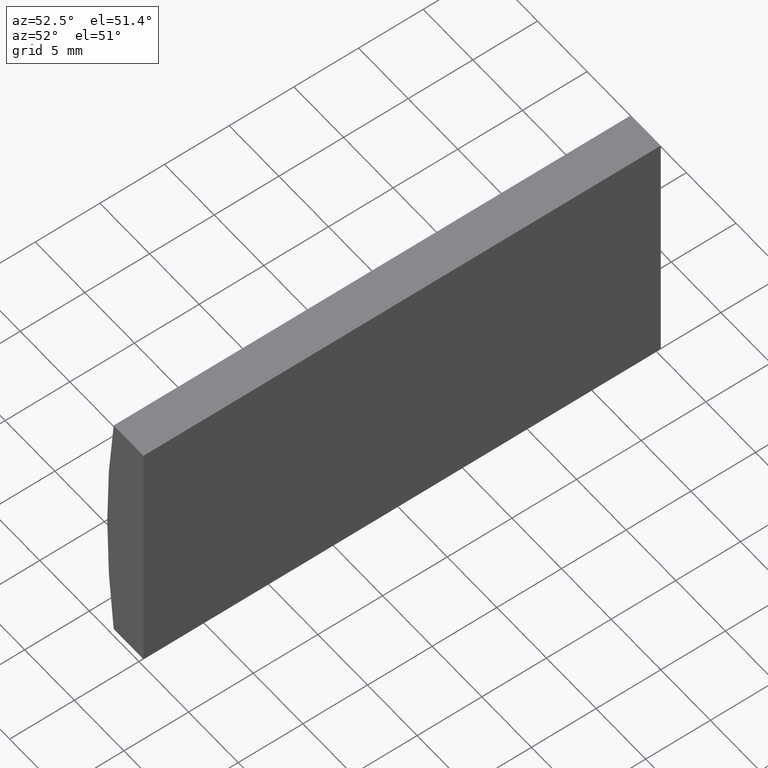
[diagram: clean part render]
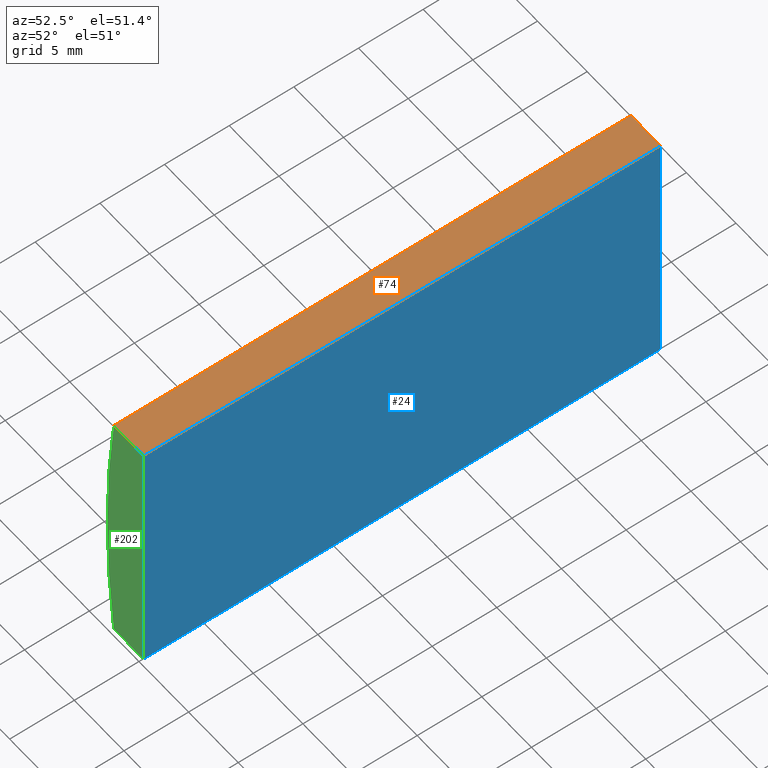
[diagram: same view with three faces highlighted in distinct colors, each labeled with its STEP entity id]
A machine part, auxiliary view with three faces highlighted in distinct colors.
Their STEP definitions:

[orange] entity #74 — the highlighted planar face has unit normal (0, 0, -1).
#15 = EDGE_CURVE ( 'NONE', #183, #96, #198, .T. ) ;
#18 = VERTEX_POINT ( 'NONE', #154 ) ;
#19 = PLANE ( 'NONE',  #188 ) ;
#21 = LINE ( 'NONE', #152, #136 ) ;
#23 = ORIENTED_EDGE ( 'NONE', *, *, #121, .F. ) ;
#46 = ORIENTED_EDGE ( 'NONE', *, *, #101, .T. ) ;
#53 = CARTESIAN_POINT ( 'NONE',  ( -69.54479566514874000, 0.0000000000000000000, 10.00000000000000000 ) ) ;
#65 = VECTOR ( 'NONE', #68, 1000.000000000000000 ) ;
#68 = DIRECTION ( 'NONE',  ( -0.0000000000000000000, -1.000000000000000000, -0.0000000000000000000 ) ) ;
#71 = CARTESIAN_POINT ( 'NONE',  ( -72.54734763840902200, 40.00000000000000000, 10.00000000000000000 ) ) ;
#74 = ADVANCED_FACE ( 'NONE', ( #82 ), #19, .F. ) ;
#78 = DIRECTION ( 'NONE',  ( 0.0000000000000000000, 0.0000000000000000000, -1.000000000000000000 ) ) ;
#82 = FACE_OUTER_BOUND ( 'NONE', #85, .T. ) ;
#83 = VERTEX_POINT ( 'NONE', #189 ) ;
#85 = EDGE_LOOP ( 'NONE', ( #127, #119, #23, #46 ) ) ;
#87 = EDGE_CURVE ( 'NONE', #18, #96, #193, .T. ) ;
#96 = VERTEX_POINT ( 'NONE', #53 ) ;
#97 = CARTESIAN_POINT ( 'NONE',  ( -69.54479566514874000, 40.00000000000000000, 10.00000000000000000 ) ) ;
#101 = EDGE_CURVE ( 'NONE', #83, #18, #114, .T. ) ;
#108 = DIRECTION ( 'NONE',  ( -0.0000000000000000000, -1.000000000000000000, -0.0000000000000000000 ) ) ;
#111 = DIRECTION ( 'NONE',  ( 1.000000000000000000, 0.0000000000000000000, 0.0000000000000000000 ) ) ;
#114 = LINE ( 'NONE', #179, #65 ) ;
#119 = ORIENTED_EDGE ( 'NONE', *, *, #15, .F. ) ;
#120 = CARTESIAN_POINT ( 'NONE',  ( -72.54734763840902200, 0.0000000000000000000, 10.00000000000000000 ) ) ;
#121 = EDGE_CURVE ( 'NONE', #83, #183, #21, .T. ) ;
#126 = VECTOR ( 'NONE', #111, 1000.000000000000000 ) ;
#127 = ORIENTED_EDGE ( 'NONE', *, *, #87, .T. ) ;
#133 = DIRECTION ( 'NONE',  ( 1.000000000000000000, 0.0000000000000000000, 0.0000000000000000000 ) ) ;
#136 = VECTOR ( 'NONE', #133, 1000.000000000000000 ) ;
#152 = CARTESIAN_POINT ( 'NONE',  ( -72.54734763840902200, 40.00000000000000000, 10.00000000000000000 ) ) ;
#154 = CARTESIAN_POINT ( 'NONE',  ( -72.54734763840902200, 0.0000000000000000000, 10.00000000000000000 ) ) ;
#179 = CARTESIAN_POINT ( 'NONE',  ( -72.54734763840902200, 40.00000000000000000, 10.00000000000000000 ) ) ;
#180 = DIRECTION ( 'NONE',  ( -1.000000000000000000, 0.0000000000000000000, -0.0000000000000000000 ) ) ;
#183 = VERTEX_POINT ( 'NONE', #97 ) ;
#188 = AXIS2_PLACEMENT_3D ( 'NONE', #71, #78, #180 ) ;
#189 = CARTESIAN_POINT ( 'NONE',  ( -72.54734763840902200, 40.00000000000000000, 10.00000000000000000 ) ) ;
#193 = LINE ( 'NONE', #120, #126 ) ;
#196 = VECTOR ( 'NONE', #108, 1000.000000000000000 ) ;
#198 = LINE ( 'NONE', #201, #196 ) ;
#201 = CARTESIAN_POINT ( 'NONE',  ( -69.54479566514874000, 40.00000000000000000, 10.00000000000000000 ) ) ;

[blue] entity #24 — the highlighted planar face has unit normal (-1, 0, 0).
#1 = ORIENTED_EDGE ( 'NONE', *, *, #166, .F. ) ;
#7 = DIRECTION ( 'NONE',  ( -0.0000000000000000000, -1.000000000000000000, -0.0000000000000000000 ) ) ;
#10 = VERTEX_POINT ( 'NONE', #33 ) ;
#11 = LINE ( 'NONE', #112, #54 ) ;
#15 = EDGE_CURVE ( 'NONE', #183, #96, #198, .T. ) ;
#16 = LINE ( 'NONE', #148, #177 ) ;
#24 = ADVANCED_FACE ( 'NONE', ( #168 ), #95, .F. ) ;
#32 = ORIENTED_EDGE ( 'NONE', *, *, #113, .F. ) ;
#33 = CARTESIAN_POINT ( 'NONE',  ( -69.54479566514874000, 0.0000000000000000000, -9.999999999999982200 ) ) ;
#40 = EDGE_CURVE ( 'NONE', #96, #10, #11, .T. ) ;
#45 = LINE ( 'NONE', #173, #192 ) ;
#53 = CARTESIAN_POINT ( 'NONE',  ( -69.54479566514874000, 0.0000000000000000000, 10.00000000000000000 ) ) ;
#54 = VECTOR ( 'NONE', #122, 1000.000000000000000 ) ;
#66 = ORIENTED_EDGE ( 'NONE', *, *, #40, .T. ) ;
#73 = VERTEX_POINT ( 'NONE', #75 ) ;
#75 = CARTESIAN_POINT ( 'NONE',  ( -69.54479566514874000, 40.00000000000000000, -9.999999999999982200 ) ) ;
#95 = PLANE ( 'NONE',  #172 ) ;
#96 = VERTEX_POINT ( 'NONE', #53 ) ;
#97 = CARTESIAN_POINT ( 'NONE',  ( -69.54479566514874000, 40.00000000000000000, 10.00000000000000000 ) ) ;
#108 = DIRECTION ( 'NONE',  ( -0.0000000000000000000, -1.000000000000000000, -0.0000000000000000000 ) ) ;
#112 = CARTESIAN_POINT ( 'NONE',  ( -69.54479566514874000, 0.0000000000000000000, -9.999999999999982200 ) ) ;
#113 = EDGE_CURVE ( 'NONE', #183, #73, #45, .T. ) ;
#122 = DIRECTION ( 'NONE',  ( -0.0000000000000000000, -0.0000000000000000000, -1.000000000000000000 ) ) ;
#128 = DIRECTION ( 'NONE',  ( -1.000000000000000000, 0.0000000000000000000, 0.0000000000000000000 ) ) ;
#140 = DIRECTION ( 'NONE',  ( -0.0000000000000000000, -0.0000000000000000000, -1.000000000000000000 ) ) ;
#142 = CARTESIAN_POINT ( 'NONE',  ( -69.54479566514874000, 40.00000000000000000, -9.999999999999982200 ) ) ;
#143 = EDGE_LOOP ( 'NONE', ( #66, #1, #32, #171 ) ) ;
#148 = CARTESIAN_POINT ( 'NONE',  ( -69.54479566514874000, 40.00000000000000000, -9.999999999999982200 ) ) ;
#161 = DIRECTION ( 'NONE',  ( 0.0000000000000000000, 0.0000000000000000000, 1.000000000000000000 ) ) ;
#166 = EDGE_CURVE ( 'NONE', #73, #10, #16, .T. ) ;
#168 = FACE_OUTER_BOUND ( 'NONE', #143, .T. ) ;
#171 = ORIENTED_EDGE ( 'NONE', *, *, #15, .T. ) ;
#172 = AXIS2_PLACEMENT_3D ( 'NONE', #142, #128, #161 ) ;
#173 = CARTESIAN_POINT ( 'NONE',  ( -69.54479566514874000, 40.00000000000000000, -9.999999999999982200 ) ) ;
#177 = VECTOR ( 'NONE', #7, 1000.000000000000000 ) ;
#183 = VERTEX_POINT ( 'NONE', #97 ) ;
#192 = VECTOR ( 'NONE', #140, 1000.000000000000000 ) ;
#196 = VECTOR ( 'NONE', #108, 1000.000000000000000 ) ;
#198 = LINE ( 'NONE', #201, #196 ) ;
#201 = CARTESIAN_POINT ( 'NONE',  ( -69.54479566514874000, 40.00000000000000000, 10.00000000000000000 ) ) ;

[green] entity #202 — the highlighted planar face has unit normal (0, 1, 0).
#3 = CARTESIAN_POINT ( 'NONE',  ( 4.355204334851265500, 0.0000000000000000000, 4.286263797015675000E-017 ) ) ;
#5 = ORIENTED_EDGE ( 'NONE', *, *, #200, .F. ) ;
#10 = VERTEX_POINT ( 'NONE', #33 ) ;
#11 = LINE ( 'NONE', #112, #54 ) ;
#18 = VERTEX_POINT ( 'NONE', #154 ) ;
#26 = FACE_OUTER_BOUND ( 'NONE', #27, .T. ) ;
#27 = EDGE_LOOP ( 'NONE', ( #5, #160, #99, #137 ) ) ;
#33 = CARTESIAN_POINT ( 'NONE',  ( -69.54479566514874000, 0.0000000000000000000, -9.999999999999982200 ) ) ;
#38 = DIRECTION ( 'NONE',  ( 0.0000000000000000000, 0.0000000000000000000, 1.000000000000000000 ) ) ;
#40 = EDGE_CURVE ( 'NONE', #96, #10, #11, .T. ) ;
#43 = DIRECTION ( 'NONE',  ( -1.000000000000000000, -0.0000000000000000000, -5.777496914044019200E-015 ) ) ;
#51 = DIRECTION ( 'NONE',  ( 0.0000000000000000000, 1.000000000000000000, 0.0000000000000000000 ) ) ;
#53 = CARTESIAN_POINT ( 'NONE',  ( -69.54479566514874000, 0.0000000000000000000, 10.00000000000000000 ) ) ;
#54 = VECTOR ( 'NONE', #122, 1000.000000000000000 ) ;
#58 = LINE ( 'NONE', #94, #132 ) ;
#64 = AXIS2_PLACEMENT_3D ( 'NONE', #139, #51, #178 ) ;
#72 = CIRCLE ( 'NONE', #138, 77.54999999999999700 ) ;
#87 = EDGE_CURVE ( 'NONE', #18, #96, #193, .T. ) ;
#94 = CARTESIAN_POINT ( 'NONE',  ( -72.54734763840902200, 0.0000000000000000000, -10.00000000000000000 ) ) ;
#96 = VERTEX_POINT ( 'NONE', #53 ) ;
#99 = ORIENTED_EDGE ( 'NONE', *, *, #40, .F. ) ;
#109 = EDGE_CURVE ( 'NONE', #10, #151, #58, .T. ) ;
#111 = DIRECTION ( 'NONE',  ( 1.000000000000000000, 0.0000000000000000000, 0.0000000000000000000 ) ) ;
#112 = CARTESIAN_POINT ( 'NONE',  ( -69.54479566514874000, 0.0000000000000000000, -9.999999999999982200 ) ) ;
#118 = PLANE ( 'NONE',  #64 ) ;
#120 = CARTESIAN_POINT ( 'NONE',  ( -72.54734763840902200, 0.0000000000000000000, 10.00000000000000000 ) ) ;
#122 = DIRECTION ( 'NONE',  ( -0.0000000000000000000, -0.0000000000000000000, -1.000000000000000000 ) ) ;
#126 = VECTOR ( 'NONE', #111, 1000.000000000000000 ) ;
#132 = VECTOR ( 'NONE', #43, 1000.000000000000000 ) ;
#137 = ORIENTED_EDGE ( 'NONE', *, *, #87, .F. ) ;
#138 = AXIS2_PLACEMENT_3D ( 'NONE', #3, #197, #38 ) ;
#139 = CARTESIAN_POINT ( 'NONE',  ( 4.355204334851265500, 0.0000000000000000000, 4.286263797015675000E-017 ) ) ;
#151 = VERTEX_POINT ( 'NONE', #170 ) ;
#154 = CARTESIAN_POINT ( 'NONE',  ( -72.54734763840902200, 0.0000000000000000000, 10.00000000000000000 ) ) ;
#160 = ORIENTED_EDGE ( 'NONE', *, *, #109, .F. ) ;
#170 = CARTESIAN_POINT ( 'NONE',  ( -72.54734763840902200, 0.0000000000000000000, -10.00000000000000000 ) ) ;
#178 = DIRECTION ( 'NONE',  ( 0.0000000000000000000, -0.0000000000000000000, 1.000000000000000000 ) ) ;
#193 = LINE ( 'NONE', #120, #126 ) ;
#197 = DIRECTION ( 'NONE',  ( 0.0000000000000000000, 1.000000000000000000, 0.0000000000000000000 ) ) ;
#200 = EDGE_CURVE ( 'NONE', #151, #18, #72, .T. ) ;
#202 = ADVANCED_FACE ( 'NONE', ( #26 ), #118, .F. ) ;